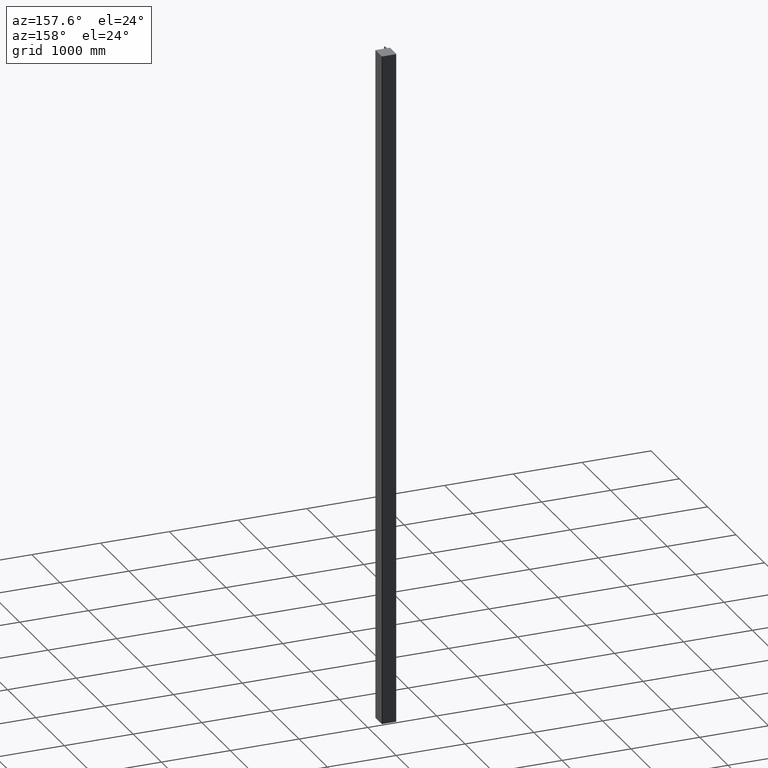
[diagram: clean part render]
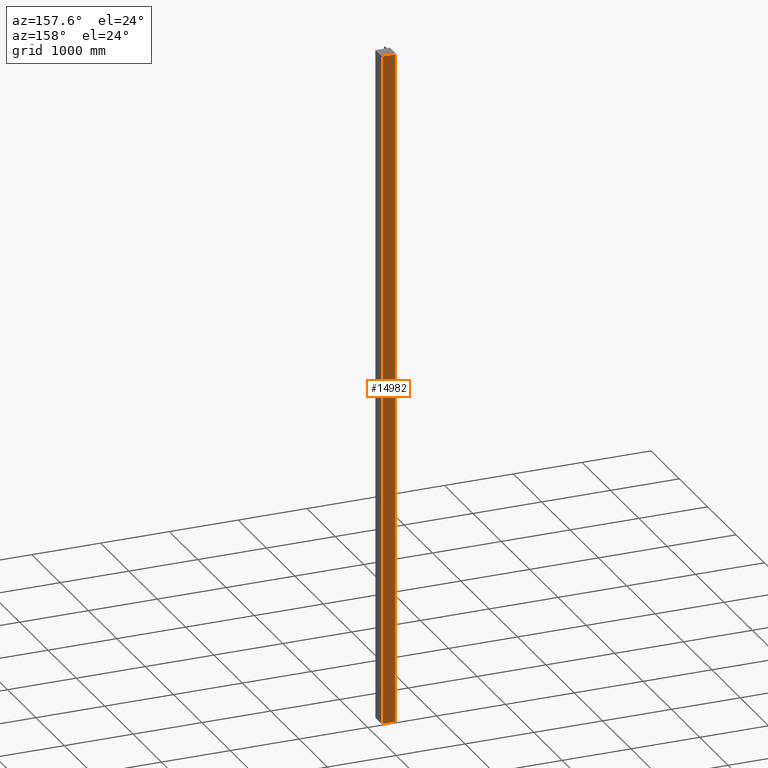
[diagram: same view with one face highlighted and labeled with its STEP entity id]
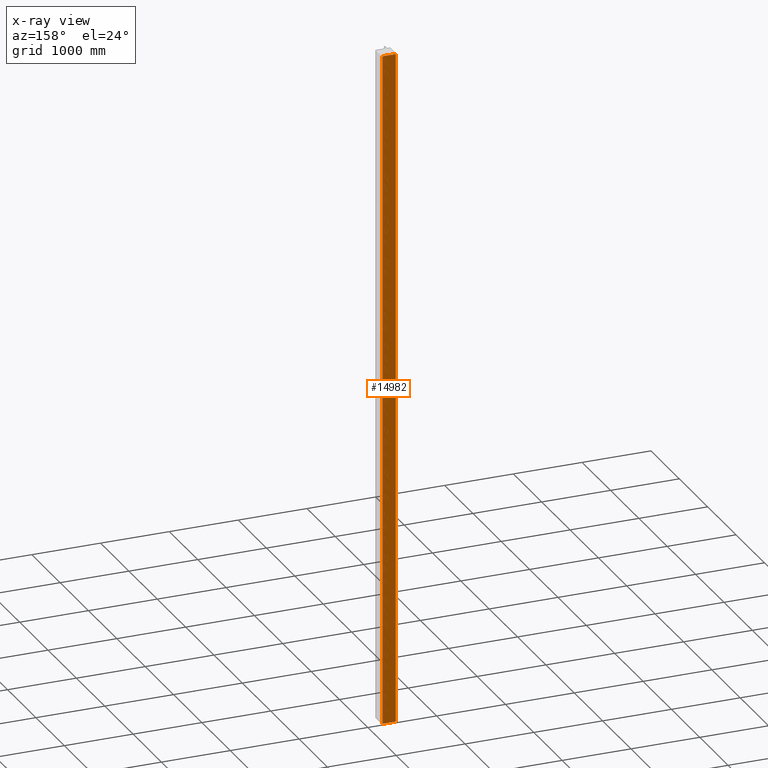
[diagram: x-ray of the same camera — body ghosted, the highlighted face saturated]
A machine part, auxiliary view. The second image highlights one B-rep face of the part: STEP entity #14982.
The next image is the same camera in x-ray: the body ghosted, the highlighted face saturated — about 0% of this face is hidden behind the body in this view.
In plain terms, the highlighted planar face has unit normal (0, 1, 0).
Its self-contained STEP definition (entity closure, byte-faithful):
#14485=CARTESIAN_POINT('',(6708.0208871467576,6276.4066631202131,-10000.0));
#14486=VERTEX_POINT('',#14485);
#14494=CARTESIAN_POINT('',(6900.0208871467694,6276.4066631202222,-10000.0));
#14495=VERTEX_POINT('',#14494);
#14496=CARTESIAN_POINT('',(6900.0208871467694,6276.4066631202168,-10000.0));
#14497=DIRECTION('',(-1.0,0.0,0.0));
#14498=VECTOR('',#14497,192.00000000001182);
#14499=LINE('',#14496,#14498);
#14500=EDGE_CURVE('',#14495,#14486,#14499,.T.);
#14871=CARTESIAN_POINT('',(6900.0208871467694,6276.4066631202568,-180.0));
#14872=VERTEX_POINT('',#14871);
#14880=CARTESIAN_POINT('',(6708.0208871467576,6276.4066631201767,-180.0));
#14881=VERTEX_POINT('',#14880);
#14882=CARTESIAN_POINT('',(6708.0208871467576,6276.4066631202131,-180.0));
#14883=DIRECTION('',(1.0,0.0,0.0));
#14884=VECTOR('',#14883,192.00000000001182);
#14885=LINE('',#14882,#14884);
#14886=EDGE_CURVE('',#14881,#14872,#14885,.T.);
#14955=CARTESIAN_POINT('',(6708.0208871467576,6276.4066631202131,-180.0));
#14956=DIRECTION('',(0.0,0.0,-1.0));
#14957=VECTOR('',#14956,9820.0);
#14958=LINE('',#14955,#14957);
#14959=EDGE_CURVE('',#14881,#14486,#14958,.T.);
#14966=CARTESIAN_POINT('',(6804.0208871467603,6276.406663120214,0.0));
#14967=DIRECTION('',(0.0,1.0,0.0));
#14968=DIRECTION('',(0.0,0.0,1.0));
#14969=AXIS2_PLACEMENT_3D('',#14966,#14967,#14968);
#14970=PLANE('',#14969);
#14971=ORIENTED_EDGE('',*,*,#14886,.T.);
#14972=CARTESIAN_POINT('',(6900.0208871467694,6276.4066631202222,-10000.0));
#14973=DIRECTION('',(0.0,0.0,1.0));
#14974=VECTOR('',#14973,9820.0);
#14975=LINE('',#14972,#14974);
#14976=EDGE_CURVE('',#14495,#14872,#14975,.T.);
#14977=ORIENTED_EDGE('',*,*,#14976,.F.);
#14978=ORIENTED_EDGE('',*,*,#14500,.T.);
#14979=ORIENTED_EDGE('',*,*,#14959,.F.);
#14980=EDGE_LOOP('',(#14971,#14977,#14978,#14979));
#14981=FACE_OUTER_BOUND('',#14980,.T.);
#14982=ADVANCED_FACE('',(#14981),#14970,.T.);